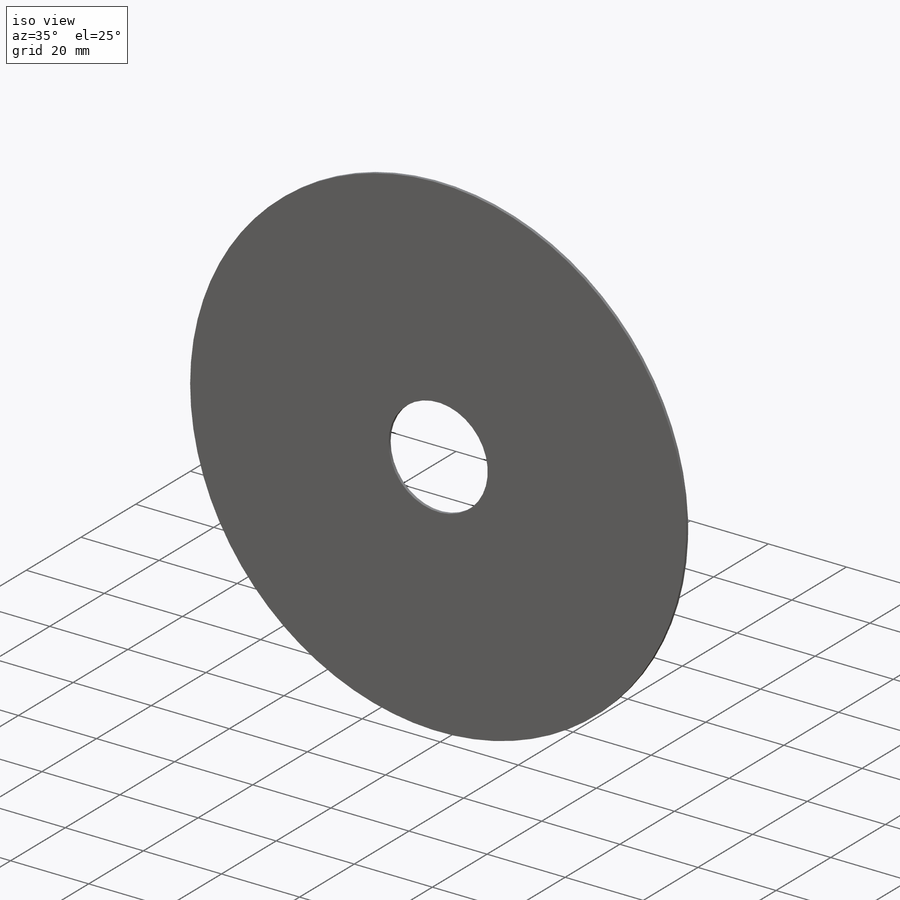
[diagram: iso view]
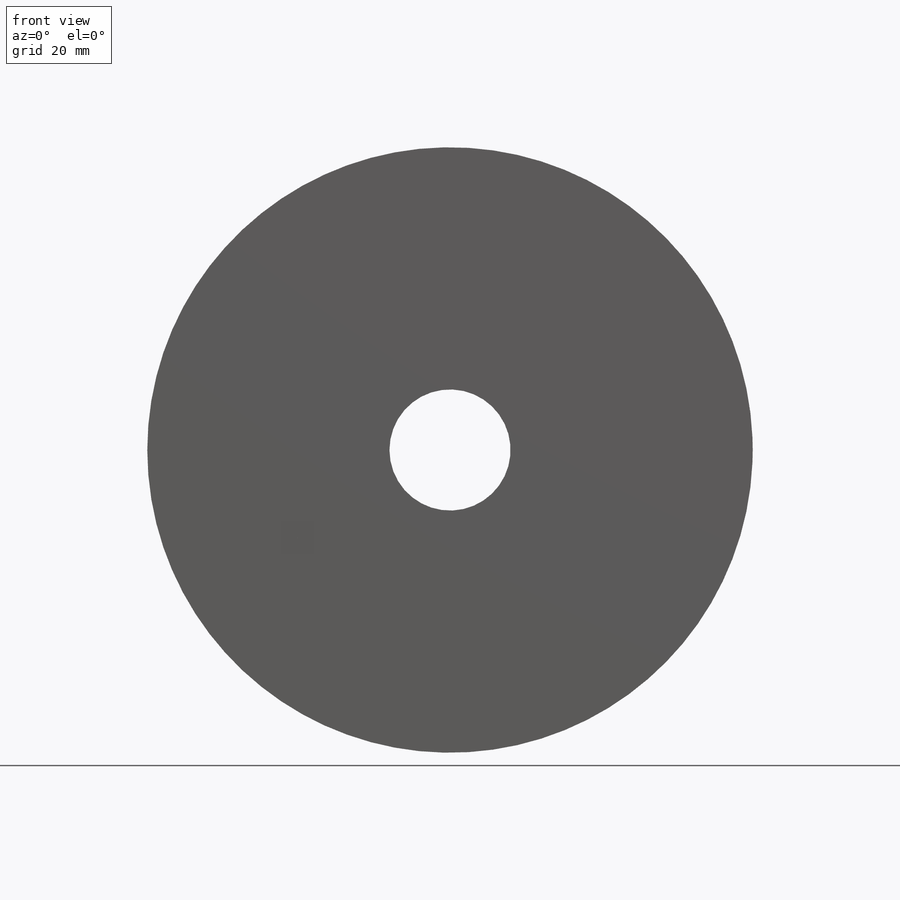
[diagram: front view]
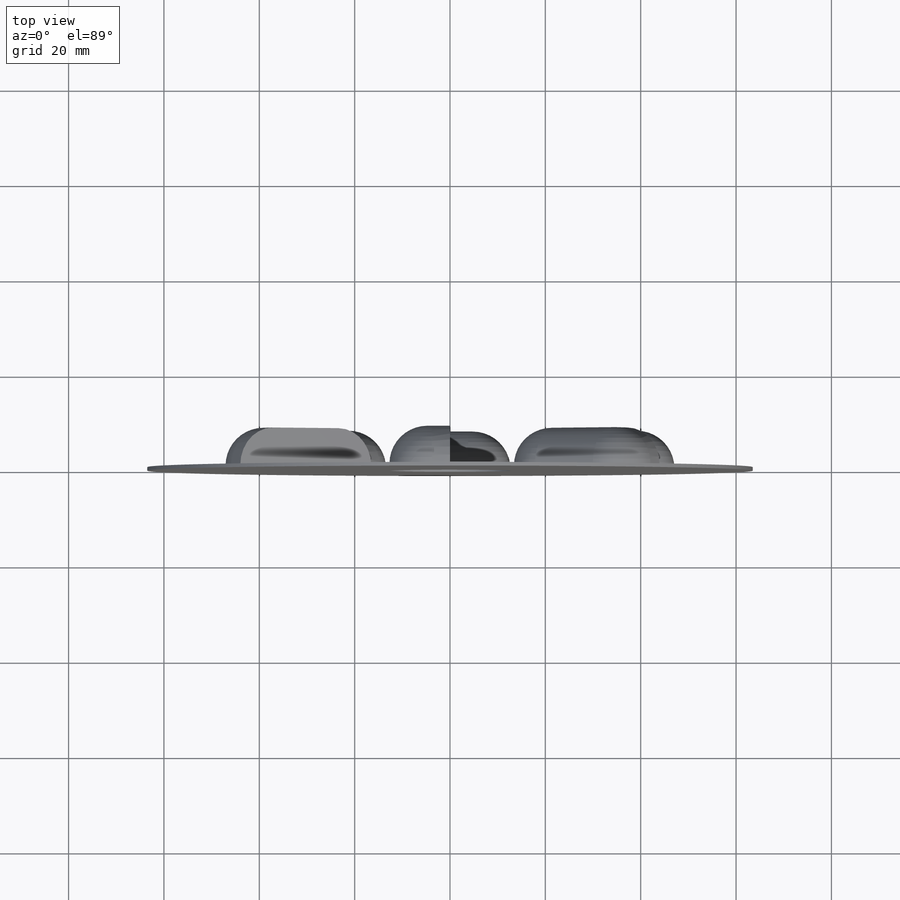
[diagram: top view]
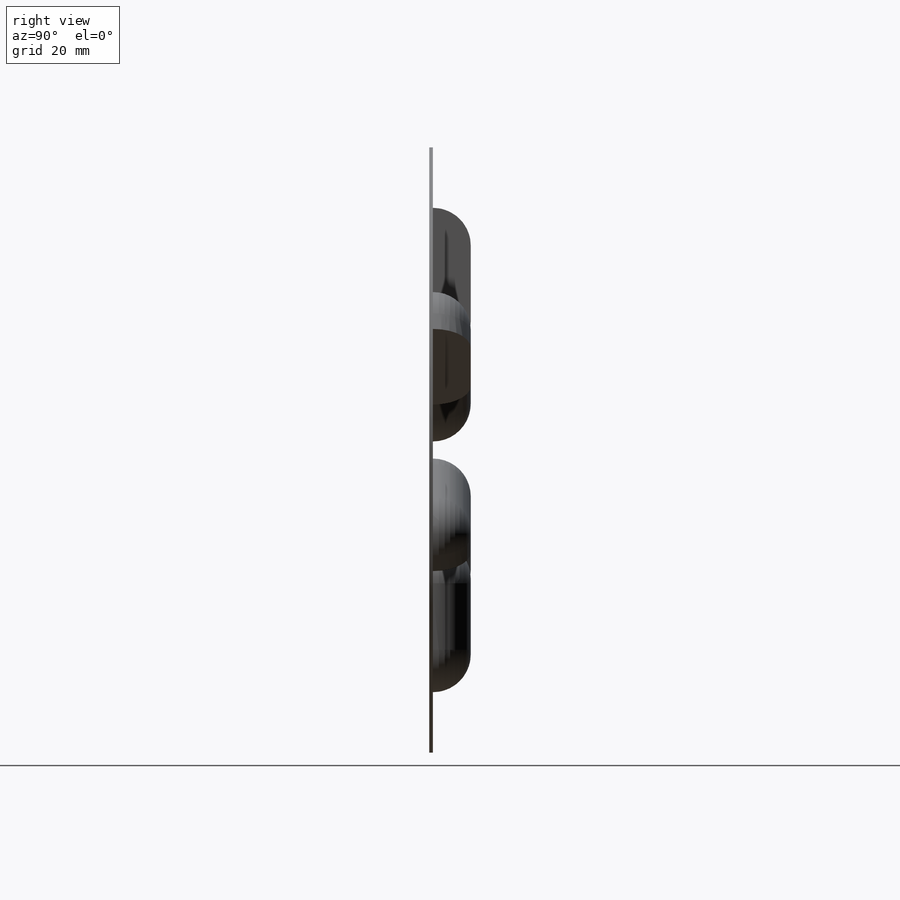
[diagram: right view]
SOLIDWORKS PART (.sldprt)
format: sldprt  version: not decoded by parser v0  size: 227,328 bytes
history: native  units: mm
features: sketch x3, extrude x2, material x1, fillet x1, pattern_circular x1, cut_extrude x1 (+15 scaffold rows collapsed)
feature tree (24):
  scaffold x15  (default folders/planes/origin — collapsed)
  material  "Material <not specified>"
  sketch  "Sketch1"  dims[D1=127.0mm]
  extrude  "Boss-Extrude1"  Depth=0.762mm
  sketch  "Sketch2"  dims[D1=8.89mm D2=31.75mm D3=50.8mm D4=12.7mm]
  extrude  "Boss-Extrude2"  Depth=7.9375mm
  fillet  "Fillet1"  Radius=7.9375mm
  pattern_circular  "CirPattern1"  Count=6 Angle=360deg
  sketch  "Sketch4"  dims[D1=25.4mm]
  cut_extrude  "Cut-Extrude1"  [1 undecoded]
decode coverage: 7 of 8 modeling features carry decoded parameters
note: 1 parameter value undecoded
note: suppression state not decoded; provenance and decode notes live in map.json
